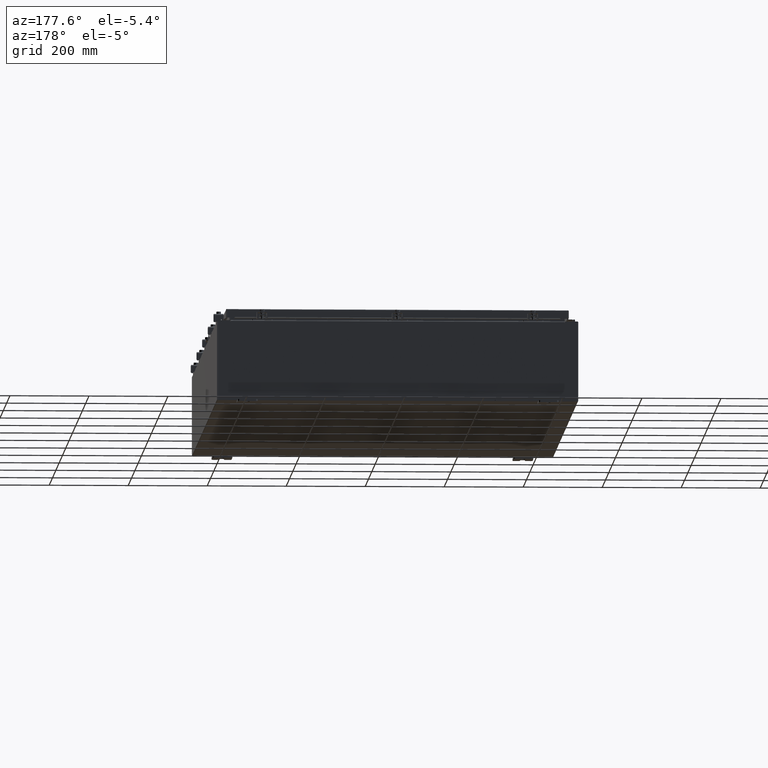
[diagram: clean part render]
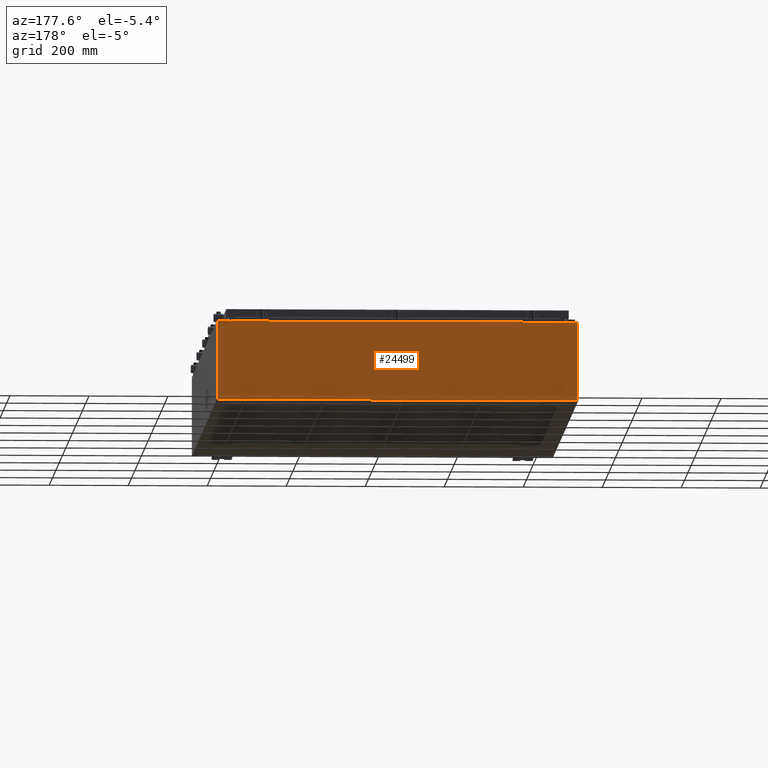
[diagram: same view with one face highlighted and labeled with its STEP entity id]
A machine part, auxiliary view. The second image highlights one B-rep face of the part: STEP entity #24499.
In plain terms, the highlighted planar face has unit normal (0, -1, 0).
Its self-contained STEP definition (entity closure, byte-faithful):
#1033 = ORIENTED_EDGE ( 'NONE', *, *, #53120, .F. ) ;
#2487 = VERTEX_POINT ( 'NONE', #18761 ) ;
#2775 = LINE ( 'NONE', #15576, #41167 ) ;
#3321 = CARTESIAN_POINT ( 'NONE',  ( -17.92529999999999600, 0.0000000000000000000, 3.925300000000000500 ) ) ;
#3334 = CARTESIAN_POINT ( 'NONE',  ( 16.63720000000000700, 0.0000000000000000000, 3.912300000000000100 ) ) ;
#3587 = DIRECTION ( 'NONE',  ( 1.000000000000000000, 0.0000000000000000000, 0.0000000000000000000 ) ) ;
#4776 = EDGE_CURVE ( 'NONE', #29409, #10995, #29393, .T. ) ;
#6841 = ORIENTED_EDGE ( 'NONE', *, *, #38862, .F. ) ;
#7686 = DIRECTION ( 'NONE',  ( 0.0000000000000000000, 0.0000000000000000000, -1.000000000000000000 ) ) ;
#8020 = VERTEX_POINT ( 'NONE', #52338 ) ;
#8057 = LINE ( 'NONE', #56148, #59565 ) ;
#9491 = CARTESIAN_POINT ( 'NONE',  ( 16.63720000000000700, 0.0000000000000000000, 0.0000000000000000000 ) ) ;
#9707 = AXIS2_PLACEMENT_3D ( 'NONE', #51856, #54916, #51238 ) ;
#10145 = VERTEX_POINT ( 'NONE', #35188 ) ;
#10995 = VERTEX_POINT ( 'NONE', #3334 ) ;
#11434 = DIRECTION ( 'NONE',  ( 1.000000000000000000, 0.0000000000000000000, 0.0000000000000000000 ) ) ;
#11938 = LINE ( 'NONE', #49866, #26843 ) ;
#12521 = CARTESIAN_POINT ( 'NONE',  ( -17.92529999999999600, 0.0000000000000000000, 3.925300000000000500 ) ) ;
#13265 = VECTOR ( 'NONE', #3587, 39.37007874015748100 ) ;
#13699 = CARTESIAN_POINT ( 'NONE',  ( -17.92529999999999600, 0.0000000000000000000, -3.925299999999999100 ) ) ;
#13930 = CARTESIAN_POINT ( 'NONE',  ( 16.63720000000000700, 0.0000000000000000000, 3.874950000000000100 ) ) ;
#14337 = DIRECTION ( 'NONE',  ( -0.0000000000000000000, 1.000000000000000000, -0.0000000000000000000 ) ) ;
#15253 = CARTESIAN_POINT ( 'NONE',  ( 16.65587500000000500, 0.0000000000000000000, 3.874950000000000100 ) ) ;
#15269 = EDGE_CURVE ( 'NONE', #43906, #2487, #41816, .T. ) ;
#15470 = DIRECTION ( 'NONE',  ( 1.000000000000000000, 0.0000000000000000000, 0.0000000000000000000 ) ) ;
#15576 = CARTESIAN_POINT ( 'NONE',  ( 17.92530000000000400, 0.0000000000000000000, 3.925300000000000500 ) ) ;
#15974 = VERTEX_POINT ( 'NONE', #44605 ) ;
#16100 = CARTESIAN_POINT ( 'NONE',  ( 17.92530000000000400, 0.0000000000000000000, -3.925299999999999100 ) ) ;
#17337 = VECTOR ( 'NONE', #40495, 39.37007874015748100 ) ;
#17794 = DIRECTION ( 'NONE',  ( -1.000000000000000000, -0.0000000000000000000, -0.0000000000000000000 ) ) ;
#18761 = CARTESIAN_POINT ( 'NONE',  ( -17.92529999999999600, 0.0000000000000000000, -3.925299999999999100 ) ) ;
#20267 = DIRECTION ( 'NONE',  ( 0.0000000000000000000, 0.0000000000000000000, -1.000000000000000000 ) ) ;
#20517 = DIRECTION ( 'NONE',  ( 0.0000000000000000000, 0.0000000000000000000, 1.000000000000000000 ) ) ;
#22324 = EDGE_CURVE ( 'NONE', #10145, #43906, #2775, .T. ) ;
#24499 = ADVANCED_FACE ( 'NONE', ( #50057 ), #40209, .F. ) ;
#26316 = VERTEX_POINT ( 'NONE', #38470 ) ;
#26843 = VECTOR ( 'NONE', #34829, 39.37007874015748100 ) ;
#27112 = EDGE_CURVE ( 'NONE', #54675, #8020, #47055, .T. ) ;
#27731 = EDGE_CURVE ( 'NONE', #41803, #10995, #52333, .T. ) ;
#27832 = VECTOR ( 'NONE', #20517, 39.37007874015748100 ) ;
#29393 = LINE ( 'NONE', #9491, #27832 ) ;
#29409 = VERTEX_POINT ( 'NONE', #13930 ) ;
#29846 = LINE ( 'NONE', #3321, #51685 ) ;
#30573 = ORIENTED_EDGE ( 'NONE', *, *, #57461, .F. ) ;
#30583 = LINE ( 'NONE', #50252, #17337 ) ;
#32107 = AXIS2_PLACEMENT_3D ( 'NONE', #44265, #14337, #49259 ) ;
#32765 = ORIENTED_EDGE ( 'NONE', *, *, #22324, .T. ) ;
#33136 = VECTOR ( 'NONE', #61050, 39.37007874015748100 ) ;
#34829 = DIRECTION ( 'NONE',  ( -8.681145560800009800E-014, 0.0000000000000000000, -1.000000000000000000 ) ) ;
#35032 = CARTESIAN_POINT ( 'NONE',  ( -16.67454999999999600, -0.0000000000000000000, 0.0000000000000000000 ) ) ;
#35188 = CARTESIAN_POINT ( 'NONE',  ( 17.92530000000000400, 0.0000000000000000000, 3.925300000000000500 ) ) ;
#35644 = VERTEX_POINT ( 'NONE', #12521 ) ;
#37558 = CARTESIAN_POINT ( 'NONE',  ( 16.67455000000001100, 0.0000000000000000000, 3.925300000000000500 ) ) ;
#38470 = CARTESIAN_POINT ( 'NONE',  ( -16.67454999999999600, 0.0000000000000000000, 3.925300000000000500 ) ) ;
#38862 = EDGE_CURVE ( 'NONE', #62620, #15974, #11938, .T. ) ;
#39191 = VECTOR ( 'NONE', #15470, 39.37007874015748100 ) ;
#40209 = PLANE ( 'NONE',  #9707 ) ;
#40495 = DIRECTION ( 'NONE',  ( 0.0000000000000000000, 0.0000000000000000000, -1.000000000000000000 ) ) ;
#41167 = VECTOR ( 'NONE', #7686, 39.37007874015748100 ) ;
#41288 = EDGE_CURVE ( 'NONE', #35644, #26316, #53054, .T. ) ;
#41803 = VERTEX_POINT ( 'NONE', #47693 ) ;
#41816 = LINE ( 'NONE', #13699, #51833 ) ;
#43356 = AXIS2_PLACEMENT_3D ( 'NONE', #15253, #50162, #20267 ) ;
#43906 = VERTEX_POINT ( 'NONE', #16100 ) ;
#44265 = CARTESIAN_POINT ( 'NONE',  ( -16.65587499999999800, 0.0000000000000000000, 3.874950000000000100 ) ) ;
#44605 = CARTESIAN_POINT ( 'NONE',  ( 16.67455000000000700, 0.0000000000000000000, 3.874950000000000100 ) ) ;
#45198 = CARTESIAN_POINT ( 'NONE',  ( -16.63719999999999600, 3.756290991288361700E-016, 3.912300000000000100 ) ) ;
#45422 = CARTESIAN_POINT ( 'NONE',  ( -16.63719999999999600, -0.0000000000000000000, 3.874950000000000100 ) ) ;
#47055 = CIRCLE ( 'NONE', #32107, 0.01867499999999949400 ) ;
#47109 = ORIENTED_EDGE ( 'NONE', *, *, #58396, .F. ) ;
#47693 = CARTESIAN_POINT ( 'NONE',  ( -16.63719999999999600, 3.756290991288361700E-016, 3.912300000000000100 ) ) ;
#47715 = ORIENTED_EDGE ( 'NONE', *, *, #49174, .T. ) ;
#48140 = DIRECTION ( 'NONE',  ( -0.0000000000000000000, -0.0000000000000000000, 1.000000000000000000 ) ) ;
#49174 = EDGE_CURVE ( 'NONE', #2487, #35644, #29846, .T. ) ;
#49259 = DIRECTION ( 'NONE',  ( 0.0000000000000000000, 0.0000000000000000000, -1.000000000000000000 ) ) ;
#49866 = CARTESIAN_POINT ( 'NONE',  ( 16.67454999999967000, -0.0000000000000000000, -1.447541957108349400E-012 ) ) ;
#50057 = FACE_OUTER_BOUND ( 'NONE', #50137, .T. ) ;
#50137 = EDGE_LOOP ( 'NONE', ( #30573, #53880, #1033, #58050, #60010, #47109, #6841, #53487, #32765, #63918, #47715, #57066 ) ) ;
#50162 = DIRECTION ( 'NONE',  ( -0.0000000000000000000, 1.000000000000000000, -0.0000000000000000000 ) ) ;
#50252 = CARTESIAN_POINT ( 'NONE',  ( -16.63719999999999600, -0.0000000000000000000, 0.0000000000000000000 ) ) ;
#51238 = DIRECTION ( 'NONE',  ( 0.0000000000000000000, -0.0000000000000000000, -1.000000000000000000 ) ) ;
#51685 = VECTOR ( 'NONE', #48140, 39.37007874015748100 ) ;
#51833 = VECTOR ( 'NONE', #17794, 39.37007874015748100 ) ;
#51856 = CARTESIAN_POINT ( 'NONE',  ( 0.0000000000000000000, 0.0000000000000000000, 0.0000000000000000000 ) ) ;
#52333 = LINE ( 'NONE', #45198, #39191 ) ;
#52338 = CARTESIAN_POINT ( 'NONE',  ( -16.67454999999999600, 0.0000000000000000000, 3.874950000000000100 ) ) ;
#53054 = LINE ( 'NONE', #63037, #13265 ) ;
#53120 = EDGE_CURVE ( 'NONE', #41803, #54675, #30583, .T. ) ;
#53487 = ORIENTED_EDGE ( 'NONE', *, *, #57079, .T. ) ;
#53880 = ORIENTED_EDGE ( 'NONE', *, *, #27112, .F. ) ;
#54675 = VERTEX_POINT ( 'NONE', #45422 ) ;
#54916 = DIRECTION ( 'NONE',  ( 0.0000000000000000000, -1.000000000000000000, 0.0000000000000000000 ) ) ;
#56148 = CARTESIAN_POINT ( 'NONE',  ( -17.92529999999999600, 0.0000000000000000000, 3.925300000000000500 ) ) ;
#57066 = ORIENTED_EDGE ( 'NONE', *, *, #41288, .T. ) ;
#57079 = EDGE_CURVE ( 'NONE', #62620, #10145, #8057, .T. ) ;
#57461 = EDGE_CURVE ( 'NONE', #8020, #26316, #59506, .T. ) ;
#58050 = ORIENTED_EDGE ( 'NONE', *, *, #27731, .T. ) ;
#58396 = EDGE_CURVE ( 'NONE', #15974, #29409, #60946, .T. ) ;
#59506 = LINE ( 'NONE', #35032, #33136 ) ;
#59565 = VECTOR ( 'NONE', #11434, 39.37007874015748100 ) ;
#60010 = ORIENTED_EDGE ( 'NONE', *, *, #4776, .F. ) ;
#60946 = CIRCLE ( 'NONE', #43356, 0.01867499999999949400 ) ;
#61050 = DIRECTION ( 'NONE',  ( 0.0000000000000000000, 0.0000000000000000000, 1.000000000000000000 ) ) ;
#62620 = VERTEX_POINT ( 'NONE', #37558 ) ;
#63037 = CARTESIAN_POINT ( 'NONE',  ( -17.92529999999999600, 0.0000000000000000000, 3.925300000000000500 ) ) ;
#63918 = ORIENTED_EDGE ( 'NONE', *, *, #15269, .T. ) ;